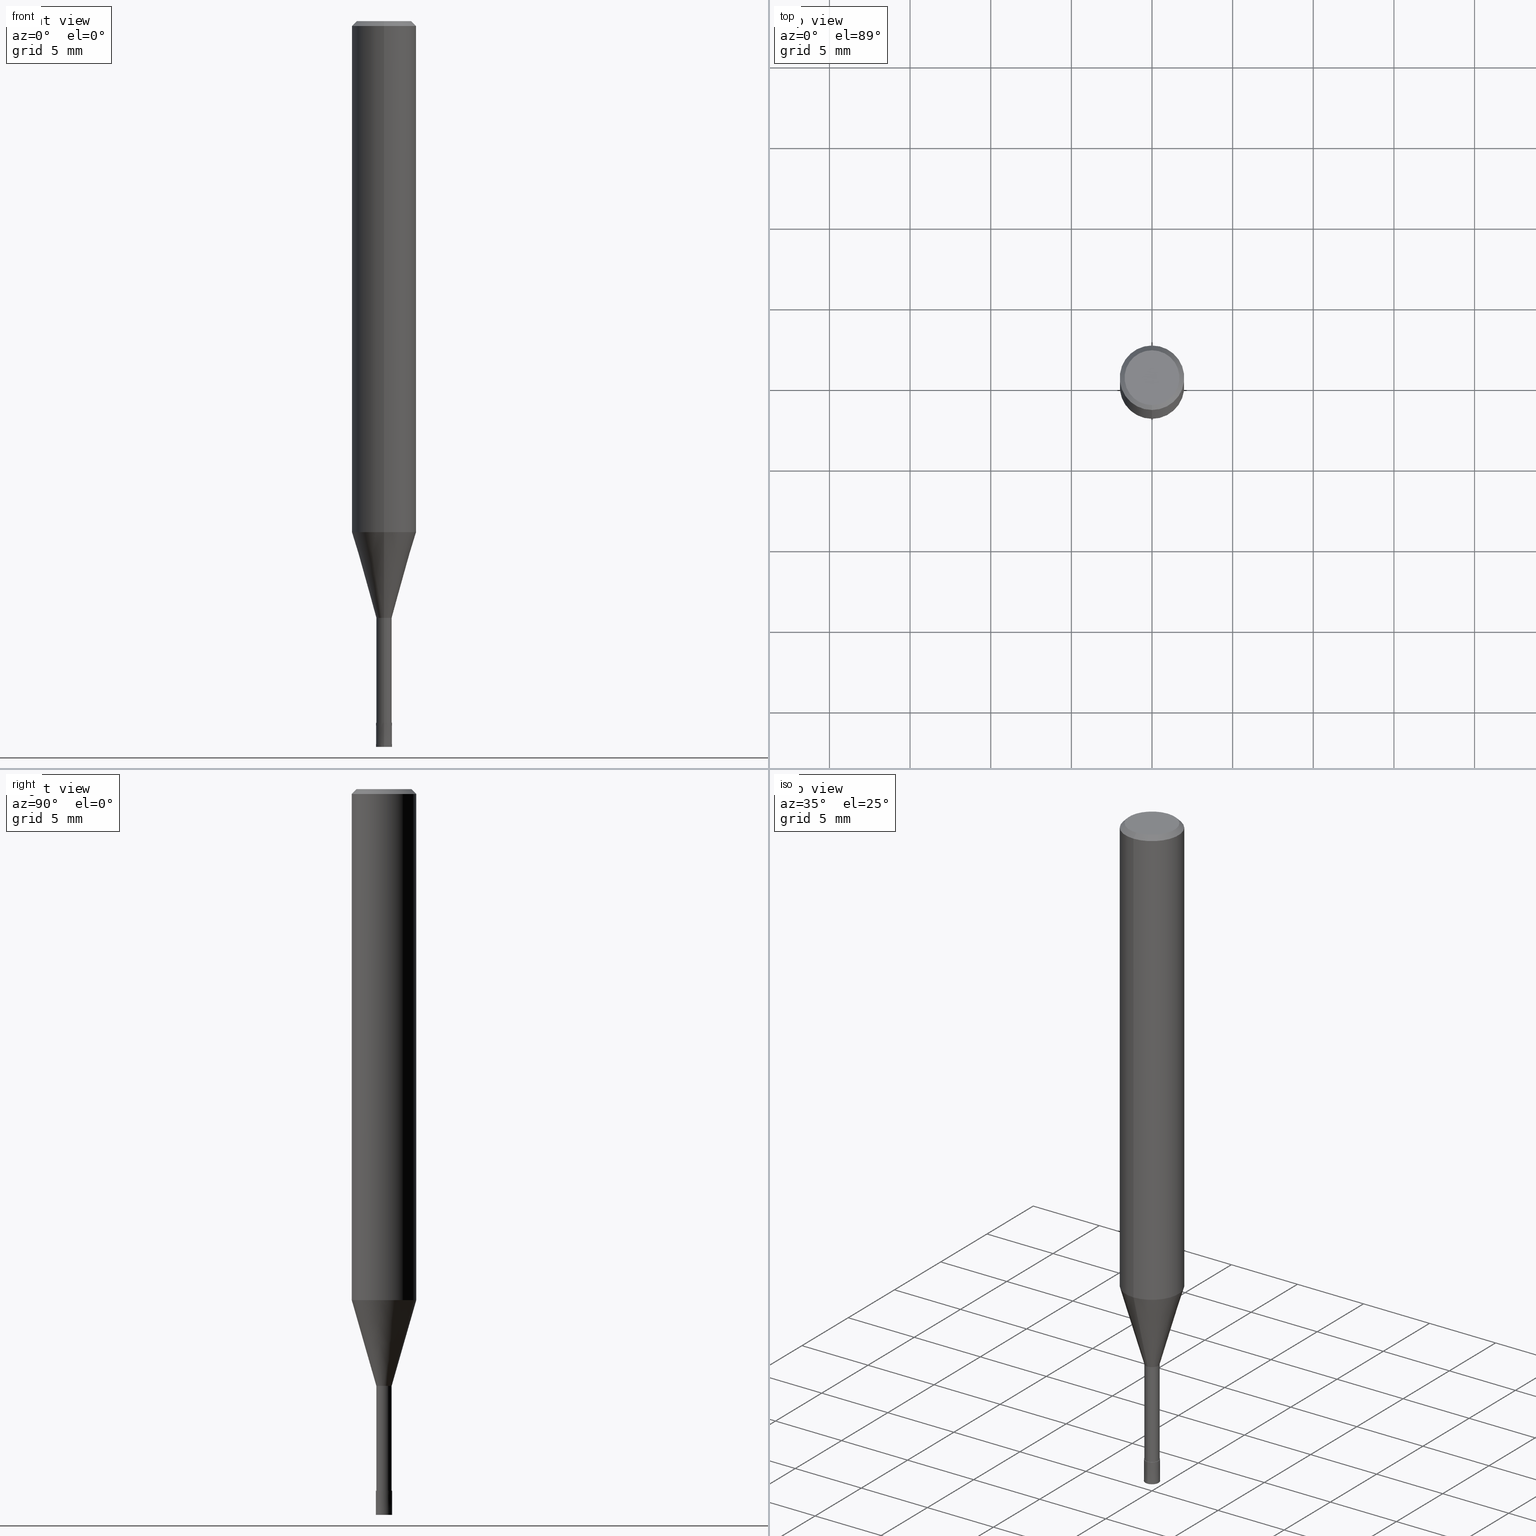
[diagram: canonical four-view strip — front | top / right | iso, engineering-drawing reading convention]
A machine part, canonical four-view strip (front | top / right | iso — engineering-drawing reading convention). The complete STEP part file that produces these views, byte-faithful:
ISO-10303-21;
HEADER;
FILE_DESCRIPTION(('no description'),'unknown implementation level');
FILE_NAME('HLS2010-080-Huellk.stp','  ',('CIMSOURCE GmbH'),('CADClick - KiM GmbH - www.kimweb.de'),'unknown preprocess','ACIS','unknown authorization');
FILE_SCHEMA(('automotive_design'));
ENDSEC;
DATA;
#1=MECHANICAL_DESIGN_GEOMETRIC_PRESENTATION_REPRESENTATION(' ',(#14,#15,#16,#17,#18,#19,#20,#21,#22,#23,#24,#25,#26,#27,#28,#29,#30,#31,#32,#33,#34,#35,#36,#37,#38,#39,#40,#41,#42,#43,#44,#45,#46,#47,#48,#49,#50,#51,#52,#53,#54,#55,#56,#57,#58,#59,#60,#61,#62,#63,#64,#65,#66,#67,#68,#69,#70,#71,#72),#10);
#2=PRODUCT_DEFINITION_CONTEXT('',#73,'design');
#3=APPLICATION_PROTOCOL_DEFINITION('INTERNATIONAL STANDARD','automotive_design',1994,#73);
#4=PRODUCT_CATEGORY_RELATIONSHIP('NONE','NONE',#74,#75);
#5=SHAPE_DEFINITION_REPRESENTATION(#76,#77);
#6=PRODUCT_DEFINITION_CONTEXT('',#78,'design');
#7=APPLICATION_PROTOCOL_DEFINITION('INTERNATIONAL STANDARD','automotive_design',1994,#78);
#8=PRODUCT_CATEGORY_RELATIONSHIP('NONE','NONE',#79,#80);
#9=SHAPE_DEFINITION_REPRESENTATION(#81,#82);
#10= (GEOMETRIC_REPRESENTATION_CONTEXT(3)GLOBAL_UNCERTAINTY_ASSIGNED_CONTEXT((#85))GLOBAL_UNIT_ASSIGNED_CONTEXT((#87,#88,#89))REPRESENTATION_CONTEXT('NONE','WORKSPACE'));
#14=STYLED_ITEM('',(#91),#92);
#15=STYLED_ITEM('',(#93),#94);
#16=STYLED_ITEM('',(#95),#96);
#17=STYLED_ITEM('',(#97),#98);
#18=STYLED_ITEM('',(#99),#100);
#19=STYLED_ITEM('',(#101),#102);
#20=STYLED_ITEM('',(#103),#104);
#21=STYLED_ITEM('',(#105),#106);
#22=STYLED_ITEM('',(#107),#108);
#23=STYLED_ITEM('',(#109),#110);
#24=STYLED_ITEM('',(#111),#112);
#25=STYLED_ITEM('',(#113),#114);
#26=STYLED_ITEM('',(#115),#116);
#27=STYLED_ITEM('',(#117),#118);
#28=STYLED_ITEM('',(#119),#120);
#29=STYLED_ITEM('',(#121),#122);
#30=STYLED_ITEM('',(#123),#124);
#31=STYLED_ITEM('',(#125),#126);
#32=STYLED_ITEM('',(#127),#128);
#33=STYLED_ITEM('',(#129),#130);
#34=STYLED_ITEM('',(#131),#132);
#35=STYLED_ITEM('',(#133),#134);
#36=STYLED_ITEM('',(#135),#136);
#37=STYLED_ITEM('',(#137),#138);
#38=STYLED_ITEM('',(#139),#140);
#39=STYLED_ITEM('',(#141),#142);
#40=STYLED_ITEM('',(#143),#144);
#41=STYLED_ITEM('',(#145),#146);
#42=STYLED_ITEM('',(#147),#148);
#43=STYLED_ITEM('',(#149),#150);
#44=STYLED_ITEM('',(#151),#152);
#45=STYLED_ITEM('',(#153),#154);
#46=STYLED_ITEM('',(#155),#156);
#47=STYLED_ITEM('',(#157),#158);
#48=STYLED_ITEM('',(#159),#160);
#49=STYLED_ITEM('',(#161),#162);
#50=STYLED_ITEM('',(#163),#164);
#51=STYLED_ITEM('',(#165),#166);
#52=STYLED_ITEM('',(#167),#168);
#53=STYLED_ITEM('',(#169),#170);
#54=STYLED_ITEM('',(#171),#172);
#55=STYLED_ITEM('',(#173),#174);
#56=STYLED_ITEM('',(#175),#176);
#57=STYLED_ITEM('',(#177),#178);
#58=STYLED_ITEM('',(#179),#180);
#59=STYLED_ITEM('',(#181),#182);
#60=STYLED_ITEM('',(#183),#184);
#61=STYLED_ITEM('',(#185),#186);
#62=STYLED_ITEM('',(#187),#188);
#63=STYLED_ITEM('',(#189),#190);
#64=STYLED_ITEM('',(#191),#192);
#65=STYLED_ITEM('',(#193),#194);
#66=STYLED_ITEM('',(#195),#196);
#67=STYLED_ITEM('',(#197),#198);
#68=STYLED_ITEM('',(#199),#200);
#69=STYLED_ITEM('',(#201),#202);
#70=STYLED_ITEM('',(#203),#204);
#71=STYLED_ITEM('',(#205),#206);
#72=STYLED_ITEM('',(#207),#208);
#73=APPLICATION_CONTEXT(' ');
#74=PRODUCT_CATEGORY('part','NONE');
#75=PRODUCT_RELATED_PRODUCT_CATEGORY('detail',' ',(#209));
#76=PRODUCT_DEFINITION_SHAPE('NONE','NONE',#210);
#77=ADVANCED_BREP_SHAPE_REPRESENTATION('1',(#108,#211),#10);
#78=APPLICATION_CONTEXT(' ');
#79=PRODUCT_CATEGORY('part','NONE');
#80=PRODUCT_RELATED_PRODUCT_CATEGORY('detail',' ',(#212));
#81=PRODUCT_DEFINITION_SHAPE('NONE','NONE',#213);
#82=ADVANCED_BREP_SHAPE_REPRESENTATION('2',(#198,#214),#10);
#85=UNCERTAINTY_MEASURE_WITH_UNIT(LENGTH_MEASURE(1.0E-006),#87,'','');
#87= (CONVERSION_BASED_UNIT('MILLIMETRE',#217)LENGTH_UNIT()NAMED_UNIT(#220));
#88= (NAMED_UNIT(#222)PLANE_ANGLE_UNIT()SI_UNIT($,.RADIAN.));
#89= (NAMED_UNIT(#222)SOLID_ANGLE_UNIT()SI_UNIT($,.STERADIAN.));
#91=PRESENTATION_STYLE_ASSIGNMENT((#228));
#92=EDGE_CURVE('',#120,#168,#229,.T.);
#93=PRESENTATION_STYLE_ASSIGNMENT((#230));
#94=EDGE_CURVE('',#206,#100,#231,.T.);
#95=PRESENTATION_STYLE_ASSIGNMENT((#232));
#96=EDGE_CURVE('',#170,#148,#233,.T.);
#97=PRESENTATION_STYLE_ASSIGNMENT((#234));
#98=ADVANCED_FACE('',(#235),#236,.T.);
#99=PRESENTATION_STYLE_ASSIGNMENT((#237));
#100=VERTEX_POINT('',#238);
#101=PRESENTATION_STYLE_ASSIGNMENT((#239));
#102=ADVANCED_FACE('',(#240),#241,.T.);
#103=PRESENTATION_STYLE_ASSIGNMENT((#242));
#104=EDGE_CURVE('',#140,#144,#243,.T.);
#105=PRESENTATION_STYLE_ASSIGNMENT((#244));
#106=EDGE_CURVE('',#196,#126,#245,.T.);
#107=PRESENTATION_STYLE_ASSIGNMENT((#246));
#108=MANIFOLD_SOLID_BREP('1',#247);
#109=PRESENTATION_STYLE_ASSIGNMENT((#248));
#110=EDGE_CURVE('',#188,#114,#249,.T.);
#111=PRESENTATION_STYLE_ASSIGNMENT((#250));
#112=ADVANCED_FACE('',(#251),#252,.T.);
#113=PRESENTATION_STYLE_ASSIGNMENT((#253));
#114=VERTEX_POINT('',#254);
#115=PRESENTATION_STYLE_ASSIGNMENT((#255));
#116=EDGE_CURVE('',#168,#158,#256,.T.);
#117=PRESENTATION_STYLE_ASSIGNMENT((#257));
#118=ADVANCED_FACE('',(#258),#259,.T.);
#119=PRESENTATION_STYLE_ASSIGNMENT((#260));
#120=VERTEX_POINT('',#261);
#121=PRESENTATION_STYLE_ASSIGNMENT((#262));
#122=EDGE_CURVE('',#148,#170,#263,.T.);
#123=PRESENTATION_STYLE_ASSIGNMENT((#264));
#124=EDGE_CURVE('',#144,#140,#265,.T.);
#125=PRESENTATION_STYLE_ASSIGNMENT((#266));
#126=VERTEX_POINT('',#267);
#127=PRESENTATION_STYLE_ASSIGNMENT((#268));
#128=ADVANCED_FACE('',(#269),#270,.T.);
#129=PRESENTATION_STYLE_ASSIGNMENT((#271));
#130=EDGE_CURVE('',#196,#150,#272,.T.);
#131=PRESENTATION_STYLE_ASSIGNMENT((#273));
#132=ADVANCED_FACE('',(#274),#275,.T.);
#133=PRESENTATION_STYLE_ASSIGNMENT((#276));
#134=EDGE_CURVE('',#158,#206,#277,.T.);
#135=PRESENTATION_STYLE_ASSIGNMENT((#278));
#136=EDGE_CURVE('',#160,#150,#279,.T.);
#137=PRESENTATION_STYLE_ASSIGNMENT((#280));
#138=EDGE_CURVE('',#154,#100,#281,.T.);
#139=PRESENTATION_STYLE_ASSIGNMENT((#282));
#140=VERTEX_POINT('',#283);
#141=PRESENTATION_STYLE_ASSIGNMENT((#284));
#142=EDGE_CURVE('',#160,#126,#285,.T.);
#143=PRESENTATION_STYLE_ASSIGNMENT((#286));
#144=VERTEX_POINT('',#287);
#145=PRESENTATION_STYLE_ASSIGNMENT((#288));
#146=EDGE_CURVE('',#100,#154,#289,.T.);
#147=PRESENTATION_STYLE_ASSIGNMENT((#290));
#148=VERTEX_POINT('',#291);
#149=PRESENTATION_STYLE_ASSIGNMENT((#292));
#150=VERTEX_POINT('',#293);
#151=PRESENTATION_STYLE_ASSIGNMENT((#294));
#152=EDGE_CURVE('',#114,#144,#295,.T.);
#153=PRESENTATION_STYLE_ASSIGNMENT((#296));
#154=VERTEX_POINT('',#297);
#155=PRESENTATION_STYLE_ASSIGNMENT((#298));
#156=ADVANCED_FACE('',(#299),#300,.T.);
#157=PRESENTATION_STYLE_ASSIGNMENT((#301));
#158=VERTEX_POINT('',#302);
#159=PRESENTATION_STYLE_ASSIGNMENT((#303));
#160=VERTEX_POINT('',#304);
#161=PRESENTATION_STYLE_ASSIGNMENT((#305));
#162=ADVANCED_FACE('',(#306),#307,.T.);
#163=PRESENTATION_STYLE_ASSIGNMENT((#308));
#164=EDGE_CURVE('',#150,#196,#309,.T.);
#165=PRESENTATION_STYLE_ASSIGNMENT((#310));
#166=EDGE_CURVE('',#114,#188,#311,.T.);
#167=PRESENTATION_STYLE_ASSIGNMENT((#312));
#168=VERTEX_POINT('',#313);
#169=PRESENTATION_STYLE_ASSIGNMENT((#314));
#170=VERTEX_POINT('',#315);
#171=PRESENTATION_STYLE_ASSIGNMENT((#316));
#172=EDGE_CURVE('',#158,#168,#317,.T.);
#173=PRESENTATION_STYLE_ASSIGNMENT((#318));
#174=EDGE_CURVE('',#126,#160,#319,.T.);
#175=PRESENTATION_STYLE_ASSIGNMENT((#320));
#176=ADVANCED_FACE('',(#321),#322,.T.);
#177=PRESENTATION_STYLE_ASSIGNMENT((#323));
#178=EDGE_CURVE('',#154,#120,#324,.T.);
#179=PRESENTATION_STYLE_ASSIGNMENT((#325));
#180=ADVANCED_FACE('',(#326),#327,.T.);
#181=PRESENTATION_STYLE_ASSIGNMENT((#328));
#182=EDGE_CURVE('',#206,#120,#329,.T.);
#183=PRESENTATION_STYLE_ASSIGNMENT((#330));
#184=EDGE_CURVE('',#144,#148,#331,.T.);
#185=PRESENTATION_STYLE_ASSIGNMENT((#332));
#186=ADVANCED_FACE('',(#333),#334,.T.);
#187=PRESENTATION_STYLE_ASSIGNMENT((#335));
#188=VERTEX_POINT('',#336);
#189=PRESENTATION_STYLE_ASSIGNMENT((#337));
#190=EDGE_CURVE('',#170,#140,#338,.T.);
#191=PRESENTATION_STYLE_ASSIGNMENT((#339));
#192=ADVANCED_FACE('',(#340),#341,.T.);
#193=PRESENTATION_STYLE_ASSIGNMENT((#342));
#194=ADVANCED_FACE('',(#343),#344,.T.);
#195=PRESENTATION_STYLE_ASSIGNMENT((#345));
#196=VERTEX_POINT('',#346);
#197=PRESENTATION_STYLE_ASSIGNMENT((#347));
#198=MANIFOLD_SOLID_BREP('2',#348);
#199=PRESENTATION_STYLE_ASSIGNMENT((#349));
#200=EDGE_CURVE('',#140,#188,#350,.T.);
#201=PRESENTATION_STYLE_ASSIGNMENT((#351));
#202=EDGE_CURVE('',#120,#206,#352,.T.);
#203=PRESENTATION_STYLE_ASSIGNMENT((#353));
#204=ADVANCED_FACE('',(#354),#355,.T.);
#205=PRESENTATION_STYLE_ASSIGNMENT((#356));
#206=VERTEX_POINT('',#357);
#207=PRESENTATION_STYLE_ASSIGNMENT((#358));
#208=ADVANCED_FACE('',(#359,#360),#361,.T.);
#209=PRODUCT('1','1','PART-1-DESC',(#362));
#210=PRODUCT_DEFINITION('NONE','NONE',#363,#2);
#211=AXIS2_PLACEMENT_3D('',#364,#365,#366);
#212=PRODUCT('2','2','PART-2-DESC',(#367));
#213=PRODUCT_DEFINITION('NONE','NONE',#368,#6);
#214=AXIS2_PLACEMENT_3D('',#369,#370,#371);
#217=LENGTH_MEASURE_WITH_UNIT(LENGTH_MEASURE(1.0),#372);
#220=DIMENSIONAL_EXPONENTS(1.0,0.0,0.0,0.0,0.0,0.0,0.0);
#222=DIMENSIONAL_EXPONENTS(0.0,0.0,0.0,0.0,0.0,0.0,0.0);
#228=CURVE_STYLE('',#373,POSITIVE_LENGTH_MEASURE(1.0E-006),#374);
#229=LINE('',#375,#376);
#230=CURVE_STYLE('',#377,POSITIVE_LENGTH_MEASURE(1.0E-006),#378);
#231=LINE('',#379,#380);
#232=CURVE_STYLE('',#381,POSITIVE_LENGTH_MEASURE(1.0E-006),#382);
#233=CIRCLE('',#383,0.47495);
#234=SURFACE_STYLE_USAGE(.BOTH.,#384);
#235=FACE_OUTER_BOUND('',#385,.T.);
#236=PLANE('',#386);
#237=POINT_STYLE(' ',#387,POSITIVE_LENGTH_MEASURE(1.0E-006),#388);
#238=CARTESIAN_POINT('',(2.08183080149804E-016,-1.7,0.0));
#239=SURFACE_STYLE_USAGE(.BOTH.,#389);
#240=FACE_OUTER_BOUND('',#390,.T.);
#241=CYLINDRICAL_SURFACE('',#391,0.47495);
#242=CURVE_STYLE('',#392,POSITIVE_LENGTH_MEASURE(1.0E-006),#393);
#243=CIRCLE('',#394,0.47495);
#244=CURVE_STYLE('',#395,POSITIVE_LENGTH_MEASURE(1.0E-006),#396);
#245=LINE('',#397,#398);
#246=SURFACE_STYLE_USAGE(.BOTH.,#399);
#247=CLOSED_SHELL('',(#176,#118,#128,#192,#208,#156,#204,#162,#194,#102,#98));
#248=CURVE_STYLE('',#400,POSITIVE_LENGTH_MEASURE(1.0E-006),#401);
#249=CIRCLE('',#402,1.99995);
#250=SURFACE_STYLE_USAGE(.BOTH.,#403);
#251=FACE_OUTER_BOUND('',#404,.T.);
#252=PLANE('',#405);
#253=POINT_STYLE(' ',#406,POSITIVE_LENGTH_MEASURE(1.0E-006),#407);
#254=CARTESIAN_POINT('',(0.0,1.99995,-31.682));
#255=CURVE_STYLE('',#408,POSITIVE_LENGTH_MEASURE(1.0E-006),#409);
#256=CIRCLE('',#410,2.0);
#257=SURFACE_STYLE_USAGE(.BOTH.,#411);
#258=FACE_OUTER_BOUND('',#412,.T.);
#259=CONICAL_SURFACE('',#413,1.23745,0.279267977304115);
#260=POINT_STYLE(' ',#414,POSITIVE_LENGTH_MEASURE(1.0E-006),#415);
#261=CARTESIAN_POINT('',(0.0,2.0,-0.300000000000001));
#262=CURVE_STYLE('',#416,POSITIVE_LENGTH_MEASURE(1.0E-006),#417);
#263=CIRCLE('',#418,0.47495);
#264=CURVE_STYLE('',#419,POSITIVE_LENGTH_MEASURE(1.0E-006),#420);
#265=CIRCLE('',#421,0.47495);
#266=POINT_STYLE(' ',#422,POSITIVE_LENGTH_MEASURE(1.0E-006),#423);
#267=CARTESIAN_POINT('',(6.12180716275806E-017,-0.4999,-43.5));
#268=SURFACE_STYLE_USAGE(.BOTH.,#424);
#269=FACE_OUTER_BOUND('',#425,.T.);
#270=CYLINDRICAL_SURFACE('',#426,2.0);
#271=CURVE_STYLE('',#427,POSITIVE_LENGTH_MEASURE(1.0E-006),#428);
#272=CIRCLE('',#429,0.5);
#273=SURFACE_STYLE_USAGE(.BOTH.,#430);
#274=FACE_OUTER_BOUND('',#431,.T.);
#275=CONICAL_SURFACE('',#432,0.49995,6.66666665678939E-005);
#276=CURVE_STYLE('',#433,POSITIVE_LENGTH_MEASURE(1.0E-006),#434);
#277=LINE('',#435,#436);
#278=CURVE_STYLE('',#437,POSITIVE_LENGTH_MEASURE(1.0E-006),#438);
#279=LINE('',#439,#440);
#280=CURVE_STYLE('',#441,POSITIVE_LENGTH_MEASURE(1.0E-006),#442);
#281=CIRCLE('',#443,1.7);
#282=POINT_STYLE(' ',#444,POSITIVE_LENGTH_MEASURE(1.0E-006),#445);
#283=CARTESIAN_POINT('',(5.81626787747938E-017,-0.47495,-37.0));
#284=CURVE_STYLE('',#446,POSITIVE_LENGTH_MEASURE(1.0E-006),#447);
#285=CIRCLE('',#448,0.4999);
#286=POINT_STYLE(' ',#449,POSITIVE_LENGTH_MEASURE(1.0E-006),#450);
#287=CARTESIAN_POINT('',(0.0,0.47495,-37.0));
#288=CURVE_STYLE('',#451,POSITIVE_LENGTH_MEASURE(1.0E-006),#452);
#289=CIRCLE('',#453,1.7);
#290=POINT_STYLE(' ',#454,POSITIVE_LENGTH_MEASURE(1.0E-006),#455);
#291=CARTESIAN_POINT('',(0.0,0.47495,-43.5));
#292=POINT_STYLE(' ',#456,POSITIVE_LENGTH_MEASURE(1.0E-006),#457);
#293=CARTESIAN_POINT('',(0.0,0.5,-45.0));
#294=CURVE_STYLE('',#458,POSITIVE_LENGTH_MEASURE(1.0E-006),#459);
#295=LINE('',#460,#461);
#296=POINT_STYLE(' ',#462,POSITIVE_LENGTH_MEASURE(1.0E-006),#463);
#297=CARTESIAN_POINT('',(0.0,1.7,0.0));
#298=SURFACE_STYLE_USAGE(.BOTH.,#464);
#299=FACE_OUTER_BOUND('',#465,.T.);
#300=PLANE('',#466);
#301=POINT_STYLE(' ',#467,POSITIVE_LENGTH_MEASURE(1.0E-006),#468);
#302=CARTESIAN_POINT('',(2.44921270764475E-016,-2.0,-31.682));
#303=POINT_STYLE(' ',#469,POSITIVE_LENGTH_MEASURE(1.0E-006),#470);
#304=CARTESIAN_POINT('',(0.0,0.4999,-43.5));
#305=SURFACE_STYLE_USAGE(.BOTH.,#471);
#306=FACE_OUTER_BOUND('',#472,.T.);
#307=CYLINDRICAL_SURFACE('',#473,2.0);
#308=CURVE_STYLE('',#474,POSITIVE_LENGTH_MEASURE(1.0E-006),#475);
#309=CIRCLE('',#476,0.5);
#310=CURVE_STYLE('',#477,POSITIVE_LENGTH_MEASURE(1.0E-006),#478);
#311=CIRCLE('',#479,1.99995);
#312=POINT_STYLE(' ',#480,POSITIVE_LENGTH_MEASURE(1.0E-006),#481);
#313=CARTESIAN_POINT('',(0.0,2.0,-31.682));
#314=POINT_STYLE(' ',#482,POSITIVE_LENGTH_MEASURE(1.0E-006),#483);
#315=CARTESIAN_POINT('',(5.81626787747938E-017,-0.47495,-43.5));
#316=CURVE_STYLE('',#484,POSITIVE_LENGTH_MEASURE(1.0E-006),#485);
#317=CIRCLE('',#486,2.0);
#318=CURVE_STYLE('',#487,POSITIVE_LENGTH_MEASURE(1.0E-006),#488);
#319=CIRCLE('',#489,0.4999);
#320=SURFACE_STYLE_USAGE(.BOTH.,#490);
#321=FACE_OUTER_BOUND('',#491,.T.);
#322=CYLINDRICAL_SURFACE('',#492,0.47495);
#323=CURVE_STYLE('',#493,POSITIVE_LENGTH_MEASURE(1.0E-006),#494);
#324=LINE('',#495,#496);
#325=SURFACE_STYLE_USAGE(.BOTH.,#497);
#326=FACE_OUTER_BOUND('',#498,.T.);
#327=CONICAL_SURFACE('',#499,0.49995,6.66666665678939E-005);
#328=CURVE_STYLE('',#500,POSITIVE_LENGTH_MEASURE(1.0E-006),#501);
#329=CIRCLE('',#502,2.0);
#330=CURVE_STYLE('',#503,POSITIVE_LENGTH_MEASURE(1.0E-006),#504);
#331=LINE('',#505,#506);
#332=SURFACE_STYLE_USAGE(.BOTH.,#507);
#333=FACE_OUTER_BOUND('',#508,.T.);
#334=PLANE('',#509);
#335=POINT_STYLE(' ',#510,POSITIVE_LENGTH_MEASURE(1.0E-006),#511);
#336=CARTESIAN_POINT('',(2.44915147732706E-016,-1.99995,-31.682));
#337=CURVE_STYLE('',#512,POSITIVE_LENGTH_MEASURE(1.0E-006),#513);
#338=LINE('',#514,#515);
#339=SURFACE_STYLE_USAGE(.BOTH.,#516);
#340=FACE_OUTER_BOUND('',#517,.T.);
#341=CONICAL_SURFACE('',#518,1.85,0.785398163397447);
#342=SURFACE_STYLE_USAGE(.BOTH.,#519);
#343=FACE_OUTER_BOUND('',#520,.T.);
#344=CONICAL_SURFACE('',#521,1.23745,0.279267977304115);
#345=POINT_STYLE(' ',#522,POSITIVE_LENGTH_MEASURE(1.0E-006),#523);
#346=CARTESIAN_POINT('',(6.12303176911189E-017,-0.5,-45.0));
#347=SURFACE_STYLE_USAGE(.BOTH.,#524);
#348=CLOSED_SHELL('',(#132,#112,#180,#186));
#349=CURVE_STYLE('',#525,POSITIVE_LENGTH_MEASURE(1.0E-006),#526);
#350=LINE('',#527,#528);
#351=CURVE_STYLE('',#529,POSITIVE_LENGTH_MEASURE(1.0E-006),#530);
#352=CIRCLE('',#531,2.0);
#353=SURFACE_STYLE_USAGE(.BOTH.,#532);
#354=FACE_OUTER_BOUND('',#533,.T.);
#355=CONICAL_SURFACE('',#534,1.85,0.785398163397447);
#356=POINT_STYLE(' ',#535,POSITIVE_LENGTH_MEASURE(1.0E-006),#536);
#357=CARTESIAN_POINT('',(2.44921270764475E-016,-2.0,-0.300000000000001));
#358=SURFACE_STYLE_USAGE(.BOTH.,#537);
#359=FACE_OUTER_BOUND('',#538,.T.);
#360=FACE_BOUND('',#539,.T.);
#361=PLANE('',#540);
#362=PRODUCT_CONTEXT('',#73,'mechanical');
#363=PRODUCT_DEFINITION_FORMATION_WITH_SPECIFIED_SOURCE(' ','NONE',#209,.NOT_KNOWN.);
#364=CARTESIAN_POINT('',(0.0,0.0,0.0));
#365=DIRECTION('',(0.0,0.0,1.0));
#366=DIRECTION('',(1.0,0.0,0.0));
#367=PRODUCT_CONTEXT('',#78,'mechanical');
#368=PRODUCT_DEFINITION_FORMATION_WITH_SPECIFIED_SOURCE(' ','NONE',#212,.NOT_KNOWN.);
#369=CARTESIAN_POINT('',(0.0,0.0,0.0));
#370=DIRECTION('',(0.0,0.0,1.0));
#371=DIRECTION('',(1.0,0.0,0.0));
#372= (NAMED_UNIT(#220)LENGTH_UNIT()SI_UNIT(.MILLI.,.METRE.));
#373=DRAUGHTING_PRE_DEFINED_CURVE_FONT('continuous');
#374=COLOUR_RGB('',0.498039215803146,0.498039215803146,0.498039215803146);
#375=CARTESIAN_POINT('',(-2.44921270764475E-016,2.0,-15.991));
#376=VECTOR('',#542,1.0);
#377=DRAUGHTING_PRE_DEFINED_CURVE_FONT('continuous');
#378=COLOUR_RGB('',0.498039215803146,0.498039215803146,0.498039215803146);
#379=CARTESIAN_POINT('',(2.2655217545714E-016,-1.85,-0.149999999999999));
#380=VECTOR('',#543,1.0);
#381=DRAUGHTING_PRE_DEFINED_CURVE_FONT('continuous');
#382=COLOUR_RGB('',0.498039215803146,0.498039215803146,0.498039215803146);
#383=AXIS2_PLACEMENT_3D('',#544,#545,#546);
#384=SURFACE_SIDE_STYLE('',(#547));
#385=EDGE_LOOP('',(#548,#549));
#386=AXIS2_PLACEMENT_3D('',#550,#551,#552);
#387=PRE_DEFINED_MARKER('');
#388=COLOUR_RGB('',0.498039215803146,0.498039215803146,0.498039215803146);
#389=SURFACE_SIDE_STYLE('',(#553));
#390=EDGE_LOOP('',(#554,#555,#556,#557));
#391=AXIS2_PLACEMENT_3D('',#558,#559,#560);
#392=DRAUGHTING_PRE_DEFINED_CURVE_FONT('continuous');
#393=COLOUR_RGB('',0.498039215803146,0.498039215803146,0.498039215803146);
#394=AXIS2_PLACEMENT_3D('',#561,#562,#563);
#395=DRAUGHTING_PRE_DEFINED_CURVE_FONT('continuous');
#396=COLOUR_RGB('',0.800000011920929,0.800000011920929,0.800000011920929);
#397=CARTESIAN_POINT('',(6.12241946593497E-017,-0.49995,-44.25));
#398=VECTOR('',#564,1.0);
#399=SURFACE_SIDE_STYLE('',(#565));
#400=DRAUGHTING_PRE_DEFINED_CURVE_FONT('continuous');
#401=COLOUR_RGB('',0.498039215803146,0.498039215803146,0.498039215803146);
#402=AXIS2_PLACEMENT_3D('',#566,#567,#568);
#403=SURFACE_SIDE_STYLE('',(#569));
#404=EDGE_LOOP('',(#570,#571));
#405=AXIS2_PLACEMENT_3D('',#572,#573,#574);
#406=PRE_DEFINED_MARKER('');
#407=COLOUR_RGB('',0.498039215803146,0.498039215803146,0.498039215803146);
#408=DRAUGHTING_PRE_DEFINED_CURVE_FONT('continuous');
#409=COLOUR_RGB('',0.498039215803146,0.498039215803146,0.498039215803146);
#410=AXIS2_PLACEMENT_3D('',#575,#576,#577);
#411=SURFACE_SIDE_STYLE('',(#578));
#412=EDGE_LOOP('',(#579,#580,#581,#582));
#413=AXIS2_PLACEMENT_3D('',#583,#584,#585);
#414=PRE_DEFINED_MARKER('');
#415=COLOUR_RGB('',0.498039215803146,0.498039215803146,0.498039215803146);
#416=DRAUGHTING_PRE_DEFINED_CURVE_FONT('continuous');
#417=COLOUR_RGB('',0.498039215803146,0.498039215803146,0.498039215803146);
#418=AXIS2_PLACEMENT_3D('',#586,#587,#588);
#419=DRAUGHTING_PRE_DEFINED_CURVE_FONT('continuous');
#420=COLOUR_RGB('',0.498039215803146,0.498039215803146,0.498039215803146);
#421=AXIS2_PLACEMENT_3D('',#589,#590,#591);
#422=PRE_DEFINED_MARKER('');
#423=COLOUR_RGB('',0.800000011920929,0.800000011920929,0.800000011920929);
#424=SURFACE_SIDE_STYLE('',(#592));
#425=EDGE_LOOP('',(#593,#594,#595,#596));
#426=AXIS2_PLACEMENT_3D('',#597,#598,#599);
#427=DRAUGHTING_PRE_DEFINED_CURVE_FONT('continuous');
#428=COLOUR_RGB('',0.800000011920929,0.800000011920929,0.800000011920929);
#429=AXIS2_PLACEMENT_3D('',#600,#601,#602);
#430=SURFACE_SIDE_STYLE('',(#603));
#431=EDGE_LOOP('',(#604,#605,#606,#607));
#432=AXIS2_PLACEMENT_3D('',#608,#609,#610);
#433=DRAUGHTING_PRE_DEFINED_CURVE_FONT('continuous');
#434=COLOUR_RGB('',0.498039215803146,0.498039215803146,0.498039215803146);
#435=CARTESIAN_POINT('',(2.44921270764475E-016,-2.0,-15.991));
#436=VECTOR('',#611,1.0);
#437=DRAUGHTING_PRE_DEFINED_CURVE_FONT('continuous');
#438=COLOUR_RGB('',0.800000011920929,0.800000011920929,0.800000011920929);
#439=CARTESIAN_POINT('',(-6.12241946593497E-017,0.49995,-44.25));
#440=VECTOR('',#612,1.0);
#441=DRAUGHTING_PRE_DEFINED_CURVE_FONT('continuous');
#442=COLOUR_RGB('',0.498039215803146,0.498039215803146,0.498039215803146);
#443=AXIS2_PLACEMENT_3D('',#613,#614,#615);
#444=PRE_DEFINED_MARKER('');
#445=COLOUR_RGB('',0.498039215803146,0.498039215803146,0.498039215803146);
#446=DRAUGHTING_PRE_DEFINED_CURVE_FONT('continuous');
#447=COLOUR_RGB('',0.800000011920929,0.800000011920929,0.800000011920929);
#448=AXIS2_PLACEMENT_3D('',#616,#617,#618);
#449=PRE_DEFINED_MARKER('');
#450=COLOUR_RGB('',0.498039215803146,0.498039215803146,0.498039215803146);
#451=DRAUGHTING_PRE_DEFINED_CURVE_FONT('continuous');
#452=COLOUR_RGB('',0.498039215803146,0.498039215803146,0.498039215803146);
#453=AXIS2_PLACEMENT_3D('',#619,#620,#621);
#454=PRE_DEFINED_MARKER('');
#455=COLOUR_RGB('',0.498039215803146,0.498039215803146,0.498039215803146);
#456=PRE_DEFINED_MARKER('');
#457=COLOUR_RGB('',0.800000011920929,0.800000011920929,0.800000011920929);
#458=DRAUGHTING_PRE_DEFINED_CURVE_FONT('continuous');
#459=COLOUR_RGB('',0.498039215803146,0.498039215803146,0.498039215803146);
#460=CARTESIAN_POINT('',(-1.5153891325375E-016,1.23745,-34.341));
#461=VECTOR('',#622,1.0);
#462=PRE_DEFINED_MARKER('');
#463=COLOUR_RGB('',0.498039215803146,0.498039215803146,0.498039215803146);
#464=SURFACE_SIDE_STYLE('',(#623));
#465=EDGE_LOOP('',(#624,#625));
#466=AXIS2_PLACEMENT_3D('',#626,#627,#628);
#467=PRE_DEFINED_MARKER('');
#468=COLOUR_RGB('',0.498039215803146,0.498039215803146,0.498039215803146);
#469=PRE_DEFINED_MARKER('');
#470=COLOUR_RGB('',0.800000011920929,0.800000011920929,0.800000011920929);
#471=SURFACE_SIDE_STYLE('',(#629));
#472=EDGE_LOOP('',(#630,#631,#632,#633));
#473=AXIS2_PLACEMENT_3D('',#634,#635,#636);
#474=DRAUGHTING_PRE_DEFINED_CURVE_FONT('continuous');
#475=COLOUR_RGB('',0.800000011920929,0.800000011920929,0.800000011920929);
#476=AXIS2_PLACEMENT_3D('',#637,#638,#639);
#477=DRAUGHTING_PRE_DEFINED_CURVE_FONT('continuous');
#478=COLOUR_RGB('',0.498039215803146,0.498039215803146,0.498039215803146);
#479=AXIS2_PLACEMENT_3D('',#640,#641,#642);
#480=PRE_DEFINED_MARKER('');
#481=COLOUR_RGB('',0.498039215803146,0.498039215803146,0.498039215803146);
#482=PRE_DEFINED_MARKER('');
#483=COLOUR_RGB('',0.498039215803146,0.498039215803146,0.498039215803146);
#484=DRAUGHTING_PRE_DEFINED_CURVE_FONT('continuous');
#485=COLOUR_RGB('',0.498039215803146,0.498039215803146,0.498039215803146);
#486=AXIS2_PLACEMENT_3D('',#643,#644,#645);
#487=DRAUGHTING_PRE_DEFINED_CURVE_FONT('continuous');
#488=COLOUR_RGB('',0.800000011920929,0.800000011920929,0.800000011920929);
#489=AXIS2_PLACEMENT_3D('',#646,#647,#648);
#490=SURFACE_SIDE_STYLE('',(#649));
#491=EDGE_LOOP('',(#650,#651,#652,#653));
#492=AXIS2_PLACEMENT_3D('',#654,#655,#656);
#493=DRAUGHTING_PRE_DEFINED_CURVE_FONT('continuous');
#494=COLOUR_RGB('',0.498039215803146,0.498039215803146,0.498039215803146);
#495=CARTESIAN_POINT('',(-2.2655217545714E-016,1.85,-0.149999999999999));
#496=VECTOR('',#657,1.0);
#497=SURFACE_SIDE_STYLE('',(#658));
#498=EDGE_LOOP('',(#659,#660,#661,#662));
#499=AXIS2_PLACEMENT_3D('',#663,#664,#665);
#500=DRAUGHTING_PRE_DEFINED_CURVE_FONT('continuous');
#501=COLOUR_RGB('',0.498039215803146,0.498039215803146,0.498039215803146);
#502=AXIS2_PLACEMENT_3D('',#666,#667,#668);
#503=DRAUGHTING_PRE_DEFINED_CURVE_FONT('continuous');
#504=COLOUR_RGB('',0.498039215803146,0.498039215803146,0.498039215803146);
#505=CARTESIAN_POINT('',(-5.81626787747938E-017,0.47495,-40.25));
#506=VECTOR('',#669,1.0);
#507=SURFACE_SIDE_STYLE('',(#670));
#508=EDGE_LOOP('',(#671,#672));
#509=AXIS2_PLACEMENT_3D('',#673,#674,#675);
#510=PRE_DEFINED_MARKER('');
#511=COLOUR_RGB('',0.498039215803146,0.498039215803146,0.498039215803146);
#512=DRAUGHTING_PRE_DEFINED_CURVE_FONT('continuous');
#513=COLOUR_RGB('',0.498039215803146,0.498039215803146,0.498039215803146);
#514=CARTESIAN_POINT('',(5.81626787747938E-017,-0.47495,-40.25));
#515=VECTOR('',#676,1.0);
#516=SURFACE_SIDE_STYLE('',(#677));
#517=EDGE_LOOP('',(#678,#679,#680,#681));
#518=AXIS2_PLACEMENT_3D('',#682,#683,#684);
#519=SURFACE_SIDE_STYLE('',(#685));
#520=EDGE_LOOP('',(#686,#687,#688,#689));
#521=AXIS2_PLACEMENT_3D('',#690,#691,#692);
#522=PRE_DEFINED_MARKER('');
#523=COLOUR_RGB('',0.800000011920929,0.800000011920929,0.800000011920929);
#524=SURFACE_SIDE_STYLE('',(#693));
#525=DRAUGHTING_PRE_DEFINED_CURVE_FONT('continuous');
#526=COLOUR_RGB('',0.498039215803146,0.498039215803146,0.498039215803146);
#527=CARTESIAN_POINT('',(1.5153891325375E-016,-1.23745,-34.341));
#528=VECTOR('',#694,1.0);
#529=DRAUGHTING_PRE_DEFINED_CURVE_FONT('continuous');
#530=COLOUR_RGB('',0.498039215803146,0.498039215803146,0.498039215803146);
#531=AXIS2_PLACEMENT_3D('',#695,#696,#697);
#532=SURFACE_SIDE_STYLE('',(#698));
#533=EDGE_LOOP('',(#699,#700,#701,#702));
#534=AXIS2_PLACEMENT_3D('',#703,#704,#705);
#535=PRE_DEFINED_MARKER('');
#536=COLOUR_RGB('',0.498039215803146,0.498039215803146,0.498039215803146);
#537=SURFACE_SIDE_STYLE('',(#706));
#538=EDGE_LOOP('',(#707,#708));
#539=EDGE_LOOP('',(#709,#710));
#540=AXIS2_PLACEMENT_3D('',#711,#712,#713);
#542=DIRECTION('',(0.0,0.0,-1.0));
#543=DIRECTION('',(-8.65927457071934E-017,0.707106781186546,0.707106781186549));
#544=CARTESIAN_POINT('',(0.0,0.0,-43.5));
#545=DIRECTION('',(0.0,0.0,-1.0));
#546=DIRECTION('',(0.0,1.0,0.0));
#547=SURFACE_STYLE_FILL_AREA(#714);
#548=ORIENTED_EDGE('',*,*,#122,.T.);
#549=ORIENTED_EDGE('',*,*,#96,.T.);
#550=CARTESIAN_POINT('',(0.0,0.237475,-43.5));
#551=DIRECTION('',(0.0,0.0,-1.0));
#552=DIRECTION('',(0.0,1.0,0.0));
#553=SURFACE_STYLE_FILL_AREA(#715);
#554=ORIENTED_EDGE('',*,*,#184,.T.);
#555=ORIENTED_EDGE('',*,*,#96,.F.);
#556=ORIENTED_EDGE('',*,*,#190,.T.);
#557=ORIENTED_EDGE('',*,*,#104,.T.);
#558=CARTESIAN_POINT('',(0.0,0.0,-40.25));
#559=DIRECTION('',(-0.0,-0.0,1.0));
#560=DIRECTION('',(0.0,1.0,0.0));
#561=CARTESIAN_POINT('',(0.0,0.0,-37.0));
#562=DIRECTION('',(0.0,0.0,-1.0));
#563=DIRECTION('',(0.0,1.0,0.0));
#564=DIRECTION('',(-8.16404234067263E-021,6.66666665185112E-005,0.999999997777778));
#565=SURFACE_STYLE_FILL_AREA(#716);
#566=CARTESIAN_POINT('',(0.0,0.0,-31.682));
#567=DIRECTION('',(0.0,0.0,-1.0));
#568=DIRECTION('',(0.0,1.0,0.0));
#569=SURFACE_STYLE_FILL_AREA(#717);
#570=ORIENTED_EDGE('',*,*,#142,.F.);
#571=ORIENTED_EDGE('',*,*,#174,.F.);
#572=CARTESIAN_POINT('',(0.0,0.24995,-43.5));
#573=DIRECTION('',(-0.0,0.0,1.0));
#574=DIRECTION('',(0.0,-1.0,0.0));
#575=CARTESIAN_POINT('',(0.0,0.0,-31.682));
#576=DIRECTION('',(0.0,0.0,-1.0));
#577=DIRECTION('',(0.0,1.0,0.0));
#578=SURFACE_STYLE_FILL_AREA(#718);
#579=ORIENTED_EDGE('',*,*,#152,.F.);
#580=ORIENTED_EDGE('',*,*,#166,.T.);
#581=ORIENTED_EDGE('',*,*,#200,.F.);
#582=ORIENTED_EDGE('',*,*,#124,.F.);
#583=CARTESIAN_POINT('',(0.0,0.0,-34.341));
#584=DIRECTION('',(-0.0,-0.0,1.0));
#585=DIRECTION('',(0.0,1.0,0.0));
#586=CARTESIAN_POINT('',(0.0,0.0,-43.5));
#587=DIRECTION('',(0.0,0.0,-1.0));
#588=DIRECTION('',(0.0,1.0,0.0));
#589=CARTESIAN_POINT('',(0.0,0.0,-37.0));
#590=DIRECTION('',(0.0,0.0,-1.0));
#591=DIRECTION('',(0.0,1.0,0.0));
#592=SURFACE_STYLE_FILL_AREA(#719);
#593=ORIENTED_EDGE('',*,*,#92,.F.);
#594=ORIENTED_EDGE('',*,*,#202,.T.);
#595=ORIENTED_EDGE('',*,*,#134,.F.);
#596=ORIENTED_EDGE('',*,*,#116,.F.);
#597=CARTESIAN_POINT('',(0.0,0.0,-15.991));
#598=DIRECTION('',(-0.0,-0.0,1.0));
#599=DIRECTION('',(0.0,1.0,0.0));
#600=CARTESIAN_POINT('',(0.0,0.0,-45.0));
#601=DIRECTION('',(0.0,0.0,-1.0));
#602=DIRECTION('',(0.0,1.0,0.0));
#603=SURFACE_STYLE_FILL_AREA(#720);
#604=ORIENTED_EDGE('',*,*,#136,.F.);
#605=ORIENTED_EDGE('',*,*,#142,.T.);
#606=ORIENTED_EDGE('',*,*,#106,.F.);
#607=ORIENTED_EDGE('',*,*,#164,.F.);
#608=CARTESIAN_POINT('',(0.0,0.0,-44.25));
#609=DIRECTION('',(0.0,-0.0,-1.0));
#610=DIRECTION('',(0.0,1.0,0.0));
#611=DIRECTION('',(-0.0,-0.0,1.0));
#612=DIRECTION('',(-8.16404234067263E-021,6.66666665185112E-005,-0.999999997777778));
#613=CARTESIAN_POINT('',(0.0,0.0,0.0));
#614=DIRECTION('',(0.0,0.0,-1.0));
#615=DIRECTION('',(0.0,1.0,0.0));
#616=CARTESIAN_POINT('',(0.0,0.0,-43.5));
#617=DIRECTION('',(0.0,0.0,-1.0));
#618=DIRECTION('',(0.0,1.0,0.0));
#619=CARTESIAN_POINT('',(0.0,0.0,0.0));
#620=DIRECTION('',(0.0,0.0,-1.0));
#621=DIRECTION('',(0.0,1.0,0.0));
#622=DIRECTION('',(3.37565264353533E-017,-0.275652060190515,-0.961257479405349));
#623=SURFACE_STYLE_FILL_AREA(#721);
#624=ORIENTED_EDGE('',*,*,#138,.F.);
#625=ORIENTED_EDGE('',*,*,#146,.F.);
#626=CARTESIAN_POINT('',(0.0,0.85,0.0));
#627=DIRECTION('',(-0.0,0.0,1.0));
#628=DIRECTION('',(0.0,-1.0,0.0));
#629=SURFACE_STYLE_FILL_AREA(#722);
#630=ORIENTED_EDGE('',*,*,#92,.T.);
#631=ORIENTED_EDGE('',*,*,#172,.F.);
#632=ORIENTED_EDGE('',*,*,#134,.T.);
#633=ORIENTED_EDGE('',*,*,#182,.T.);
#634=CARTESIAN_POINT('',(0.0,0.0,-15.991));
#635=DIRECTION('',(-0.0,-0.0,1.0));
#636=DIRECTION('',(0.0,1.0,0.0));
#637=CARTESIAN_POINT('',(0.0,0.0,-45.0));
#638=DIRECTION('',(0.0,0.0,-1.0));
#639=DIRECTION('',(0.0,1.0,0.0));
#640=CARTESIAN_POINT('',(0.0,0.0,-31.682));
#641=DIRECTION('',(0.0,0.0,-1.0));
#642=DIRECTION('',(0.0,1.0,0.0));
#643=CARTESIAN_POINT('',(0.0,0.0,-31.682));
#644=DIRECTION('',(0.0,0.0,-1.0));
#645=DIRECTION('',(0.0,1.0,0.0));
#646=CARTESIAN_POINT('',(0.0,0.0,-43.5));
#647=DIRECTION('',(0.0,0.0,-1.0));
#648=DIRECTION('',(0.0,1.0,0.0));
#649=SURFACE_STYLE_FILL_AREA(#723);
#650=ORIENTED_EDGE('',*,*,#184,.F.);
#651=ORIENTED_EDGE('',*,*,#124,.T.);
#652=ORIENTED_EDGE('',*,*,#190,.F.);
#653=ORIENTED_EDGE('',*,*,#122,.F.);
#654=CARTESIAN_POINT('',(0.0,0.0,-40.25));
#655=DIRECTION('',(-0.0,-0.0,1.0));
#656=DIRECTION('',(0.0,1.0,0.0));
#657=DIRECTION('',(-8.65927457071934E-017,0.707106781186546,-0.707106781186549));
#658=SURFACE_STYLE_FILL_AREA(#724);
#659=ORIENTED_EDGE('',*,*,#136,.T.);
#660=ORIENTED_EDGE('',*,*,#130,.F.);
#661=ORIENTED_EDGE('',*,*,#106,.T.);
#662=ORIENTED_EDGE('',*,*,#174,.T.);
#663=CARTESIAN_POINT('',(0.0,0.0,-44.25));
#664=DIRECTION('',(0.0,-0.0,-1.0));
#665=DIRECTION('',(0.0,1.0,0.0));
#666=CARTESIAN_POINT('',(0.0,0.0,-0.300000000000001));
#667=DIRECTION('',(0.0,0.0,-1.0));
#668=DIRECTION('',(0.0,1.0,0.0));
#669=DIRECTION('',(0.0,0.0,-1.0));
#670=SURFACE_STYLE_FILL_AREA(#725);
#671=ORIENTED_EDGE('',*,*,#164,.T.);
#672=ORIENTED_EDGE('',*,*,#130,.T.);
#673=CARTESIAN_POINT('',(0.0,0.2475,-45.0));
#674=DIRECTION('',(0.0,0.0,-1.0));
#675=DIRECTION('',(0.0,1.0,0.0));
#676=DIRECTION('',(-0.0,-0.0,1.0));
#677=SURFACE_STYLE_FILL_AREA(#726);
#678=ORIENTED_EDGE('',*,*,#178,.F.);
#679=ORIENTED_EDGE('',*,*,#138,.T.);
#680=ORIENTED_EDGE('',*,*,#94,.F.);
#681=ORIENTED_EDGE('',*,*,#202,.F.);
#682=CARTESIAN_POINT('',(0.0,0.0,-0.149999999999999));
#683=DIRECTION('',(0.0,-0.0,-1.0));
#684=DIRECTION('',(0.0,1.0,0.0));
#685=SURFACE_STYLE_FILL_AREA(#727);
#686=ORIENTED_EDGE('',*,*,#152,.T.);
#687=ORIENTED_EDGE('',*,*,#104,.F.);
#688=ORIENTED_EDGE('',*,*,#200,.T.);
#689=ORIENTED_EDGE('',*,*,#110,.T.);
#690=CARTESIAN_POINT('',(0.0,0.0,-34.341));
#691=DIRECTION('',(-0.0,-0.0,1.0));
#692=DIRECTION('',(0.0,1.0,0.0));
#693=SURFACE_STYLE_FILL_AREA(#728);
#694=DIRECTION('',(3.37565264353533E-017,-0.275652060190515,0.961257479405349));
#695=CARTESIAN_POINT('',(0.0,0.0,-0.300000000000001));
#696=DIRECTION('',(0.0,0.0,-1.0));
#697=DIRECTION('',(0.0,1.0,0.0));
#698=SURFACE_STYLE_FILL_AREA(#729);
#699=ORIENTED_EDGE('',*,*,#178,.T.);
#700=ORIENTED_EDGE('',*,*,#182,.F.);
#701=ORIENTED_EDGE('',*,*,#94,.T.);
#702=ORIENTED_EDGE('',*,*,#146,.T.);
#703=CARTESIAN_POINT('',(0.0,0.0,-0.149999999999999));
#704=DIRECTION('',(0.0,-0.0,-1.0));
#705=DIRECTION('',(0.0,1.0,0.0));
#706=SURFACE_STYLE_FILL_AREA(#730);
#707=ORIENTED_EDGE('',*,*,#116,.T.);
#708=ORIENTED_EDGE('',*,*,#172,.T.);
#709=ORIENTED_EDGE('',*,*,#166,.F.);
#710=ORIENTED_EDGE('',*,*,#110,.F.);
#711=CARTESIAN_POINT('',(0.0,1.0,-31.682));
#712=DIRECTION('',(0.0,0.0,-1.0));
#713=DIRECTION('',(0.0,1.0,0.0));
#714=FILL_AREA_STYLE('',(#731));
#715=FILL_AREA_STYLE('',(#732));
#716=FILL_AREA_STYLE('',(#733));
#717=FILL_AREA_STYLE('',(#734));
#718=FILL_AREA_STYLE('',(#735));
#719=FILL_AREA_STYLE('',(#736));
#720=FILL_AREA_STYLE('',(#737));
#721=FILL_AREA_STYLE('',(#738));
#722=FILL_AREA_STYLE('',(#739));
#723=FILL_AREA_STYLE('',(#740));
#724=FILL_AREA_STYLE('',(#741));
#725=FILL_AREA_STYLE('',(#742));
#726=FILL_AREA_STYLE('',(#743));
#727=FILL_AREA_STYLE('',(#744));
#728=FILL_AREA_STYLE('',(#745));
#729=FILL_AREA_STYLE('',(#746));
#730=FILL_AREA_STYLE('',(#747));
#731=FILL_AREA_STYLE_COLOUR('',#748);
#732=FILL_AREA_STYLE_COLOUR('',#749);
#733=FILL_AREA_STYLE_COLOUR('',#750);
#734=FILL_AREA_STYLE_COLOUR('',#751);
#735=FILL_AREA_STYLE_COLOUR('',#752);
#736=FILL_AREA_STYLE_COLOUR('',#753);
#737=FILL_AREA_STYLE_COLOUR('',#754);
#738=FILL_AREA_STYLE_COLOUR('',#755);
#739=FILL_AREA_STYLE_COLOUR('',#756);
#740=FILL_AREA_STYLE_COLOUR('',#757);
#741=FILL_AREA_STYLE_COLOUR('',#758);
#742=FILL_AREA_STYLE_COLOUR('',#759);
#743=FILL_AREA_STYLE_COLOUR('',#760);
#744=FILL_AREA_STYLE_COLOUR('',#761);
#745=FILL_AREA_STYLE_COLOUR('',#762);
#746=FILL_AREA_STYLE_COLOUR('',#763);
#747=FILL_AREA_STYLE_COLOUR('',#764);
#748=COLOUR_RGB('',0.498039215803146,0.498039215803146,0.498039215803146);
#749=COLOUR_RGB('',0.498039215803146,0.498039215803146,0.498039215803146);
#750=COLOUR_RGB('',0.498039215803146,0.498039215803146,0.498039215803146);
#751=COLOUR_RGB('',0.800000011920929,0.800000011920929,0.800000011920929);
#752=COLOUR_RGB('',0.498039215803146,0.498039215803146,0.498039215803146);
#753=COLOUR_RGB('',0.498039215803146,0.498039215803146,0.498039215803146);
#754=COLOUR_RGB('',0.800000011920929,0.800000011920929,0.800000011920929);
#755=COLOUR_RGB('',0.498039215803146,0.498039215803146,0.498039215803146);
#756=COLOUR_RGB('',0.498039215803146,0.498039215803146,0.498039215803146);
#757=COLOUR_RGB('',0.498039215803146,0.498039215803146,0.498039215803146);
#758=COLOUR_RGB('',0.800000011920929,0.800000011920929,0.800000011920929);
#759=COLOUR_RGB('',0.800000011920929,0.800000011920929,0.800000011920929);
#760=COLOUR_RGB('',0.498039215803146,0.498039215803146,0.498039215803146);
#761=COLOUR_RGB('',0.498039215803146,0.498039215803146,0.498039215803146);
#762=COLOUR_RGB('',0.800000011920929,0.800000011920929,0.800000011920929);
#763=COLOUR_RGB('',0.498039215803146,0.498039215803146,0.498039215803146);
#764=COLOUR_RGB('',0.498039215803146,0.498039215803146,0.498039215803146);
#765=AXIS2_PLACEMENT_3D('PCS',#766,#767,#768);
#766=CARTESIAN_POINT('',(0.0,0.0,0.0));
#767=DIRECTION('',(0.0,0.0,1.0));
#768=DIRECTION('',(1.0,0.0,0.0));
#769=AXIS2_PLACEMENT_3D('CIP',#770,#771,#772);
#770=CARTESIAN_POINT('',(0.0,0.0,-45.0));
#771=DIRECTION('',(0.0,0.0,1.0));
#772=DIRECTION('',(1.0,0.0,0.0));
#773=AXIS2_PLACEMENT_3D('CRP',#774,#775,#776);
#774=CARTESIAN_POINT('',(-0.5,0.0,-45.0));
#775=DIRECTION('',(0.0,0.0,1.0));
#776=DIRECTION('',(1.0,0.0,0.0));
#777=AXIS2_PLACEMENT_3D('MCS',#778,#779,#780);
#778=CARTESIAN_POINT('',(0.0,0.0,-31.682));
#779=DIRECTION('',(0.0,0.0,1.0));
#780=DIRECTION('',(1.0,0.0,0.0));
#781=CONSTRUCTIVE_GEOMETRY_REPRESENTATION_RELATIONSHIP('coordinate systems',$,#77,#782);
#782=CONSTRUCTIVE_GEOMETRY_REPRESENTATION('coordinate systems',(#765,#769,#773,#777),#10);
ENDSEC;
END-ISO-10303-21;
